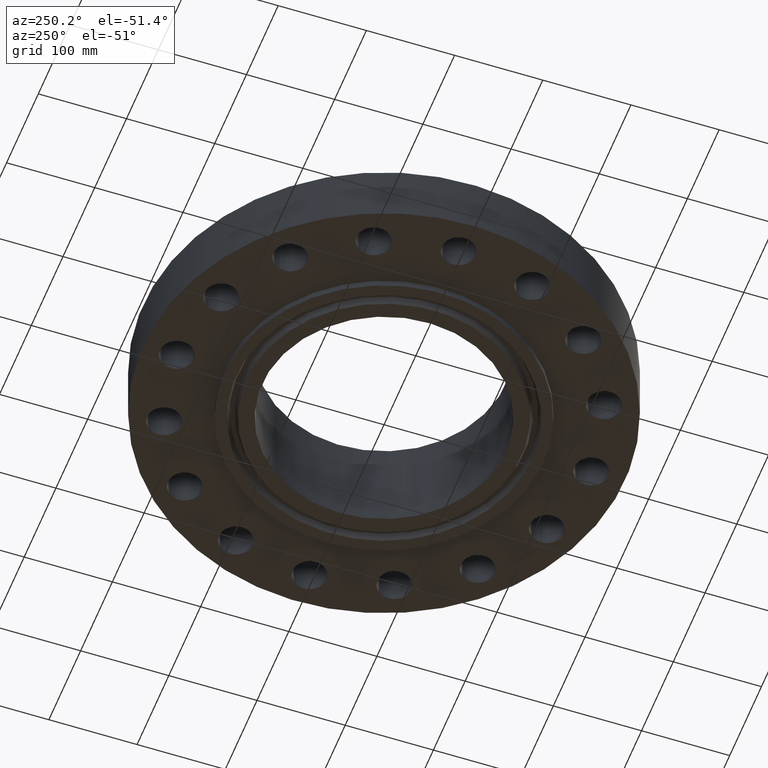
[diagram: clean part render]
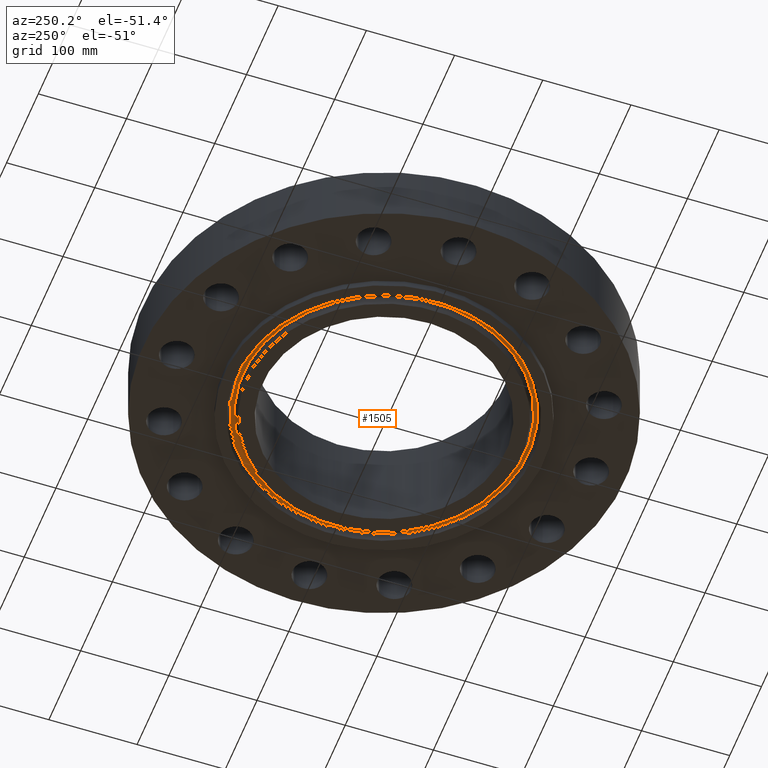
[diagram: same view with one face highlighted and labeled with its STEP entity id]
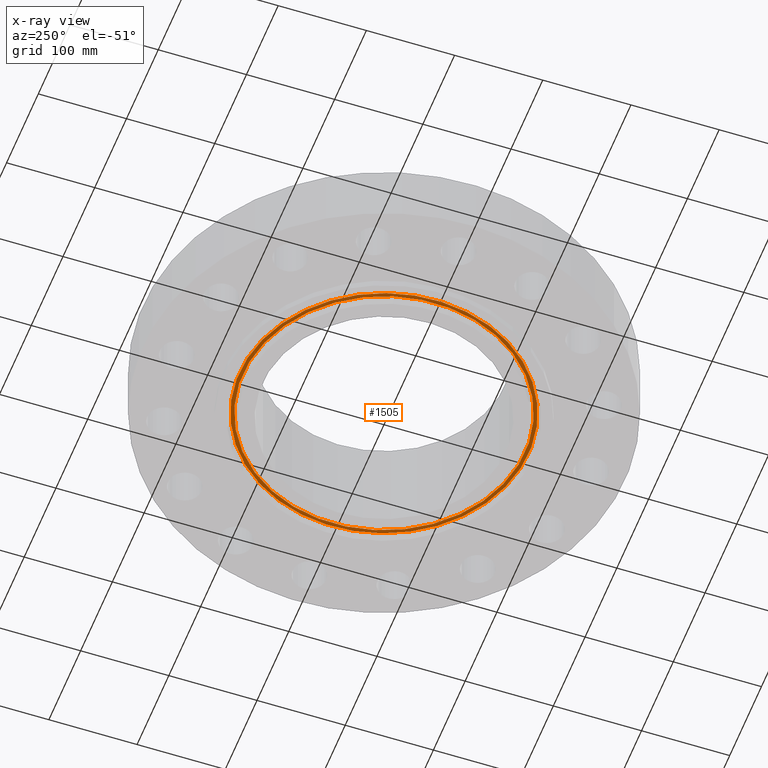
[diagram: x-ray of the same camera — body ghosted, the highlighted face saturated]
A machine part, auxiliary view. The second image highlights one B-rep face of the part: STEP entity #1505.
The next image is the same camera in x-ray: the body ghosted, the highlighted face saturated — about 0% of this face is hidden behind the body in this view.
In plain terms, the highlighted planar face has unit normal (0, 0, -1).
Its self-contained STEP definition (entity closure, byte-faithful):
#423=AXIS2_PLACEMENT_3D('Plane Axis2P3D',#420,#421,#422) ;
#1427=AXIS2_PLACEMENT_3D('Circle Axis2P3D',#1425,#1426,$) ;
#1473=AXIS2_PLACEMENT_3D('Circle Axis2P3D',#1471,#1472,$) ;
#1489=AXIS2_PLACEMENT_3D('Circle Axis2P3D',#1487,#1488,$) ;
#1498=AXIS2_PLACEMENT_3D('Circle Axis2P3D',#1496,#1497,$) ;
#420=CARTESIAN_POINT('Axis2P3D Location',(0.,7.12500000003,0.)) ;
#1422=CARTESIAN_POINT('Vertex',(-3.09518786626,5.66570338558,-1.39870617276E-016)) ;
#1425=CARTESIAN_POINT('Axis2P3D Location',(0.,0.,-1.39870617276E-016)) ;
#1429=CARTESIAN_POINT('Vertex',(3.09518786626,-5.66570338558,-1.39870617276E-016)) ;
#1471=CARTESIAN_POINT('Axis2P3D Location',(0.,0.,-1.39870617276E-016)) ;
#1487=CARTESIAN_POINT('Axis2P3D Location',(0.,0.,0.)) ;
#1491=CARTESIAN_POINT('Vertex',(3.01748775097,-5.52347427856,2.88483148131E-016)) ;
#1493=CARTESIAN_POINT('Vertex',(-3.01748775097,5.52347427856,2.88483148131E-016)) ;
#1496=CARTESIAN_POINT('Axis2P3D Location',(0.,0.,0.)) ;
#421=DIRECTION('Axis2P3D Direction',(0.,0.,-0.0393700787402)) ;
#422=DIRECTION('Axis2P3D XDirection',(0.0393700787402,0.,0.)) ;
#1426=DIRECTION('Axis2P3D Direction',(0.,0.,0.0393700787402)) ;
#1472=DIRECTION('Axis2P3D Direction',(0.,0.,0.0393700787402)) ;
#1488=DIRECTION('Axis2P3D Direction',(0.,0.,-0.0393700787402)) ;
#1497=DIRECTION('Axis2P3D Direction',(0.,0.,-0.0393700787402)) ;
#1484=ORIENTED_EDGE('',*,*,#1431,.F.) ;
#1485=ORIENTED_EDGE('',*,*,#1475,.F.) ;
#1502=ORIENTED_EDGE('',*,*,#1495,.T.) ;
#1503=ORIENTED_EDGE('',*,*,#1500,.T.) ;
#1504=FACE_BOUND('',#1501,.T.) ;
#1505=ADVANCED_FACE('PartBody',(#1486,#1504),#424,.T.) ;
#1428=CIRCLE('generated circle',#1427,6.45603460189) ;
#1474=CIRCLE('generated circle',#1473,6.45603460189) ;
#1490=CIRCLE('generated circle',#1489,6.29396539816) ;
#1499=CIRCLE('generated circle',#1498,6.29396539816) ;
#1431=EDGE_CURVE('',#1423,#1430,#1428,.T.) ;
#1475=EDGE_CURVE('',#1430,#1423,#1474,.T.) ;
#1495=EDGE_CURVE('',#1492,#1494,#1490,.F.) ;
#1500=EDGE_CURVE('',#1494,#1492,#1499,.F.) ;
#1483=EDGE_LOOP('',(#1484,#1485)) ;
#1501=EDGE_LOOP('',(#1502,#1503)) ;
#1486=FACE_OUTER_BOUND('',#1483,.T.) ;
#424=PLANE('',#423) ;
#1423=VERTEX_POINT('',#1422) ;
#1430=VERTEX_POINT('',#1429) ;
#1492=VERTEX_POINT('',#1491) ;
#1494=VERTEX_POINT('',#1493) ;